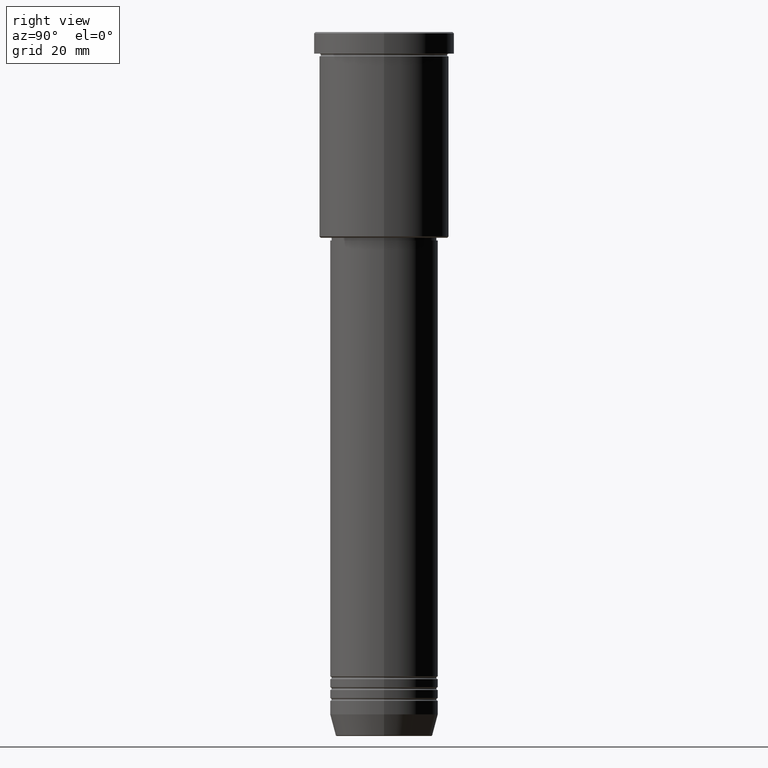
[diagram: clean part render]
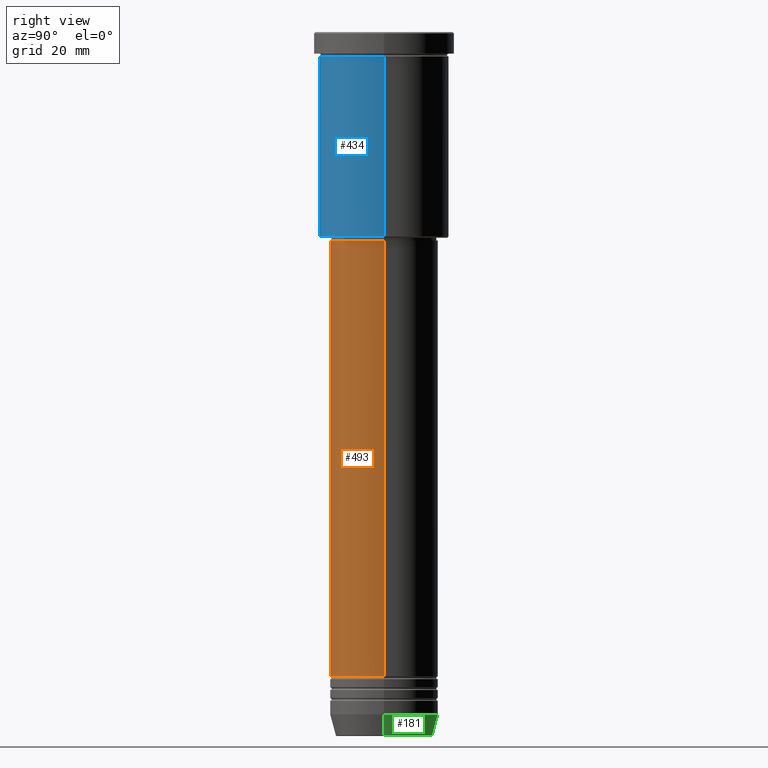
[diagram: same view with three faces highlighted in distinct colors, each labeled with its STEP entity id]
A machine part, right view with three faces highlighted in distinct colors.
Their STEP definitions:

[orange] entity #493 — the highlighted cylindrical surface (partial cylindrical patch) has radius 20 mm, axis along (-0, -0, 1).
#2 = VERTEX_POINT ( 'NONE', #106 ) ;
#4 = LINE ( 'NONE', #368, #697 ) ;
#12 = CARTESIAN_POINT ( 'NONE',  ( 0.000000000000000000, 0.000000000000000000, 0.000000000000000000 ) ) ;
#44 = EDGE_CURVE ( 'NONE', #2, #1003, #444, .T. ) ;
#106 = CARTESIAN_POINT ( 'NONE',  ( -20.00000000000000355, 2.449293598294706907E-15, -238.0000000000000000 ) ) ;
#174 = DIRECTION ( 'NONE',  ( -0.000000000000000000, -0.000000000000000000, 1.000000000000000000 ) ) ;
#284 = DIRECTION ( 'NONE',  ( -0.000000000000000000, -0.000000000000000000, 1.000000000000000000 ) ) ;
#325 = CARTESIAN_POINT ( 'NONE',  ( 20.00000000000000355, 0.000000000000000000, 0.000000000000000000 ) ) ;
#341 = ORIENTED_EDGE ( 'NONE', *, *, #968, .T. ) ;
#365 = CARTESIAN_POINT ( 'NONE',  ( 20.00000000000000355, 0.000000000000000000, -238.0000000000000000 ) ) ;
#368 = CARTESIAN_POINT ( 'NONE',  ( -20.00000000000000355, 2.449293598294706907E-15, 0.000000000000000000 ) ) ;
#425 = DIRECTION ( 'NONE',  ( 1.000000000000000000, 0.000000000000000000, 0.000000000000000000 ) ) ;
#430 = CIRCLE ( 'NONE', #1105, 20.00000000000000355 ) ;
#442 = VECTOR ( 'NONE', #687, 1000.000000000000000 ) ;
#444 = CIRCLE ( 'NONE', #568, 20.00000000000000355 ) ;
#467 = CYLINDRICAL_SURFACE ( 'NONE', #892, 20.00000000000000355 ) ;
#493 = ADVANCED_FACE ( 'NONE', ( #549 ), #467, .T. ) ;
#549 = FACE_OUTER_BOUND ( 'NONE', #1121, .T. ) ;
#565 = DIRECTION ( 'NONE',  ( 1.000000000000000000, 0.000000000000000000, 0.000000000000000000 ) ) ;
#566 = EDGE_CURVE ( 'NONE', #2, #827, #4, .T. ) ;
#568 = AXIS2_PLACEMENT_3D ( 'NONE', #748, #665, #842 ) ;
#607 = ORIENTED_EDGE ( 'NONE', *, *, #655, .F. ) ;
#655 = EDGE_CURVE ( 'NONE', #827, #800, #430, .T. ) ;
#665 = DIRECTION ( 'NONE',  ( -0.000000000000000000, -0.000000000000000000, 1.000000000000000000 ) ) ;
#680 = CARTESIAN_POINT ( 'NONE',  ( -20.00000000000000355, 2.449293598294706907E-15, -77.00000000000001421 ) ) ;
#687 = DIRECTION ( 'NONE',  ( -0.000000000000000000, -0.000000000000000000, 1.000000000000000000 ) ) ;
#697 = VECTOR ( 'NONE', #284, 1000.000000000000000 ) ;
#748 = CARTESIAN_POINT ( 'NONE',  ( 0.000000000000000000, 0.000000000000000000, -238.0000000000000000 ) ) ;
#797 = CARTESIAN_POINT ( 'NONE',  ( 0.000000000000000000, 0.000000000000000000, -77.00000000000001421 ) ) ;
#800 = VERTEX_POINT ( 'NONE', #1127 ) ;
#827 = VERTEX_POINT ( 'NONE', #680 ) ;
#842 = DIRECTION ( 'NONE',  ( 1.000000000000000000, 0.000000000000000000, 0.000000000000000000 ) ) ;
#892 = AXIS2_PLACEMENT_3D ( 'NONE', #12, #1110, #565 ) ;
#968 = EDGE_CURVE ( 'NONE', #1003, #800, #1147, .T. ) ;
#1003 = VERTEX_POINT ( 'NONE', #365 ) ;
#1041 = ORIENTED_EDGE ( 'NONE', *, *, #44, .T. ) ;
#1105 = AXIS2_PLACEMENT_3D ( 'NONE', #797, #174, #425 ) ;
#1110 = DIRECTION ( 'NONE',  ( -0.000000000000000000, -0.000000000000000000, 1.000000000000000000 ) ) ;
#1121 = EDGE_LOOP ( 'NONE', ( #1166, #1041, #341, #607 ) ) ;
#1127 = CARTESIAN_POINT ( 'NONE',  ( 20.00000000000000355, 0.000000000000000000, -77.00000000000001421 ) ) ;
#1147 = LINE ( 'NONE', #325, #442 ) ;
#1166 = ORIENTED_EDGE ( 'NONE', *, *, #566, .F. ) ;

[blue] entity #434 — the highlighted cylindrical surface (partial cylindrical patch) has radius 24 mm, axis along (-0, -0, 1).
#9 = VECTOR ( 'NONE', #893, 1000.000000000000000 ) ;
#61 = VERTEX_POINT ( 'NONE', #359 ) ;
#62 = FACE_OUTER_BOUND ( 'NONE', #653, .T. ) ;
#90 = AXIS2_PLACEMENT_3D ( 'NONE', #785, #336, #1072 ) ;
#101 = ORIENTED_EDGE ( 'NONE', *, *, #1178, .F. ) ;
#105 = AXIS2_PLACEMENT_3D ( 'NONE', #1112, #1037, #938 ) ;
#119 = ORIENTED_EDGE ( 'NONE', *, *, #906, .T. ) ;
#128 = VERTEX_POINT ( 'NONE', #803 ) ;
#148 = CIRCLE ( 'NONE', #105, 24.00000000000000000 ) ;
#163 = CARTESIAN_POINT ( 'NONE',  ( -24.00000000000000000, 2.939152317953647894E-15, -75.49999999999991473 ) ) ;
#245 = CARTESIAN_POINT ( 'NONE',  ( 24.00000000000000000, 0.000000000000000000, 0.000000000000000000 ) ) ;
#257 = DIRECTION ( 'NONE',  ( -0.000000000000000000, -0.000000000000000000, 1.000000000000000000 ) ) ;
#288 = ORIENTED_EDGE ( 'NONE', *, *, #1129, .F. ) ;
#313 = LINE ( 'NONE', #848, #388 ) ;
#321 = CARTESIAN_POINT ( 'NONE',  ( 0.000000000000000000, 0.000000000000000000, -75.49999999999991473 ) ) ;
#323 = ORIENTED_EDGE ( 'NONE', *, *, #364, .T. ) ;
#336 = DIRECTION ( 'NONE',  ( -0.000000000000000000, -0.000000000000000000, 1.000000000000000000 ) ) ;
#359 = CARTESIAN_POINT ( 'NONE',  ( 24.00000000000000000, 0.000000000000000000, -75.49999999999991473 ) ) ;
#364 = EDGE_CURVE ( 'NONE', #61, #865, #881, .T. ) ;
#388 = VECTOR ( 'NONE', #1032, 1000.000000000000000 ) ;
#421 = CYLINDRICAL_SURFACE ( 'NONE', #90, 24.00000000000000000 ) ;
#434 = ADVANCED_FACE ( 'NONE', ( #62 ), #421, .T. ) ;
#480 = AXIS2_PLACEMENT_3D ( 'NONE', #321, #257, #1165 ) ;
#585 = CIRCLE ( 'NONE', #480, 24.00000000000000000 ) ;
#653 = EDGE_LOOP ( 'NONE', ( #101, #119, #323, #288 ) ) ;
#785 = CARTESIAN_POINT ( 'NONE',  ( 0.000000000000000000, 0.000000000000000000, 0.000000000000000000 ) ) ;
#803 = CARTESIAN_POINT ( 'NONE',  ( -24.00000000000000000, 2.939152317953647894E-15, -8.999999999999994671 ) ) ;
#848 = CARTESIAN_POINT ( 'NONE',  ( -24.00000000000000000, 2.939152317953647894E-15, 0.000000000000000000 ) ) ;
#865 = VERTEX_POINT ( 'NONE', #1075 ) ;
#881 = LINE ( 'NONE', #245, #9 ) ;
#893 = DIRECTION ( 'NONE',  ( -0.000000000000000000, -0.000000000000000000, 1.000000000000000000 ) ) ;
#901 = VERTEX_POINT ( 'NONE', #163 ) ;
#906 = EDGE_CURVE ( 'NONE', #901, #61, #585, .T. ) ;
#938 = DIRECTION ( 'NONE',  ( 1.000000000000000000, 0.000000000000000000, 0.000000000000000000 ) ) ;
#1032 = DIRECTION ( 'NONE',  ( -0.000000000000000000, -0.000000000000000000, 1.000000000000000000 ) ) ;
#1037 = DIRECTION ( 'NONE',  ( -0.000000000000000000, -0.000000000000000000, 1.000000000000000000 ) ) ;
#1072 = DIRECTION ( 'NONE',  ( 1.000000000000000000, 0.000000000000000000, 0.000000000000000000 ) ) ;
#1075 = CARTESIAN_POINT ( 'NONE',  ( 24.00000000000000000, 0.000000000000000000, -8.999999999999994671 ) ) ;
#1112 = CARTESIAN_POINT ( 'NONE',  ( 0.000000000000000000, 0.000000000000000000, -8.999999999999994671 ) ) ;
#1129 = EDGE_CURVE ( 'NONE', #128, #865, #148, .T. ) ;
#1165 = DIRECTION ( 'NONE',  ( -1.000000000000000000, 0.000000000000000000, 0.000000000000000000 ) ) ;
#1178 = EDGE_CURVE ( 'NONE', #901, #128, #313, .T. ) ;

[green] entity #181 — the highlighted conical surface has half-angle 15 deg.
#7 = CIRCLE ( 'NONE', #297, 20.00000000000000355 ) ;
#55 = LINE ( 'NONE', #780, #205 ) ;
#66 = EDGE_CURVE ( 'NONE', #454, #250, #55, .T. ) ;
#93 = DIRECTION ( 'NONE',  ( -0.2588190451025212391, 3.169619151431771721E-17, 0.9659258262890680902 ) ) ;
#104 = DIRECTION ( 'NONE',  ( -0.000000000000000000, -0.000000000000000000, 1.000000000000000000 ) ) ;
#123 = EDGE_LOOP ( 'NONE', ( #759, #707, #403, #1115 ) ) ;
#129 = AXIS2_PLACEMENT_3D ( 'NONE', #838, #104, #468 ) ;
#145 = CARTESIAN_POINT ( 'NONE',  ( -20.00000000000000355, 2.449293598294706907E-15, -252.0000000000000000 ) ) ;
#160 = VERTEX_POINT ( 'NONE', #740 ) ;
#166 = AXIS2_PLACEMENT_3D ( 'NONE', #558, #273, #178 ) ;
#178 = DIRECTION ( 'NONE',  ( 1.000000000000000000, 0.000000000000000000, 0.000000000000000000 ) ) ;
#181 = ADVANCED_FACE ( 'NONE', ( #198 ), #1067, .T. ) ;
#198 = FACE_OUTER_BOUND ( 'NONE', #123, .T. ) ;
#204 = DIRECTION ( 'NONE',  ( -0.000000000000000000, -0.000000000000000000, 1.000000000000000000 ) ) ;
#205 = VECTOR ( 'NONE', #1068, 1000.000000000000114 ) ;
#211 = CARTESIAN_POINT ( 'NONE',  ( -20.00000000000000355, 2.449293598294706907E-15, -252.0000000000000000 ) ) ;
#250 = VERTEX_POINT ( 'NONE', #937 ) ;
#273 = DIRECTION ( 'NONE',  ( -0.000000000000000000, -0.000000000000000000, 1.000000000000000000 ) ) ;
#282 = VECTOR ( 'NONE', #93, 1000.000000000000114 ) ;
#297 = AXIS2_PLACEMENT_3D ( 'NONE', #949, #204, #376 ) ;
#376 = DIRECTION ( 'NONE',  ( 1.000000000000000000, 0.000000000000000000, 0.000000000000000000 ) ) ;
#403 = ORIENTED_EDGE ( 'NONE', *, *, #1143, .F. ) ;
#454 = VERTEX_POINT ( 'NONE', #1004 ) ;
#468 = DIRECTION ( 'NONE',  ( 1.000000000000000000, 0.000000000000000000, 0.000000000000000000 ) ) ;
#521 = EDGE_CURVE ( 'NONE', #160, #936, #833, .T. ) ;
#558 = CARTESIAN_POINT ( 'NONE',  ( 0.000000000000000000, 0.000000000000000000, -259.6294095225512706 ) ) ;
#707 = ORIENTED_EDGE ( 'NONE', *, *, #521, .T. ) ;
#740 = CARTESIAN_POINT ( 'NONE',  ( -17.95570587970608045, 2.324116685748021371E-15, -259.6294095225512706 ) ) ;
#751 = CIRCLE ( 'NONE', #166, 17.95570587970608045 ) ;
#759 = ORIENTED_EDGE ( 'NONE', *, *, #1017, .T. ) ;
#780 = CARTESIAN_POINT ( 'NONE',  ( 20.00000000000000355, 0.000000000000000000, -252.0000000000000000 ) ) ;
#833 = LINE ( 'NONE', #211, #282 ) ;
#838 = CARTESIAN_POINT ( 'NONE',  ( 0.000000000000000000, 0.000000000000000000, -252.0000000000000000 ) ) ;
#936 = VERTEX_POINT ( 'NONE', #145 ) ;
#937 = CARTESIAN_POINT ( 'NONE',  ( 20.00000000000000355, 0.000000000000000000, -252.0000000000000000 ) ) ;
#949 = CARTESIAN_POINT ( 'NONE',  ( 0.000000000000000000, 0.000000000000000000, -252.0000000000000000 ) ) ;
#1004 = CARTESIAN_POINT ( 'NONE',  ( 17.95570587970608045, 0.000000000000000000, -259.6294095225512706 ) ) ;
#1017 = EDGE_CURVE ( 'NONE', #454, #160, #751, .T. ) ;
#1067 = CONICAL_SURFACE ( 'NONE', #129, 20.00000000000000355, 0.2617993877991499629 ) ;
#1068 = DIRECTION ( 'NONE',  ( 0.2588190451025212391, 0.000000000000000000, 0.9659258262890680902 ) ) ;
#1115 = ORIENTED_EDGE ( 'NONE', *, *, #66, .F. ) ;
#1143 = EDGE_CURVE ( 'NONE', #250, #936, #7, .T. ) ;